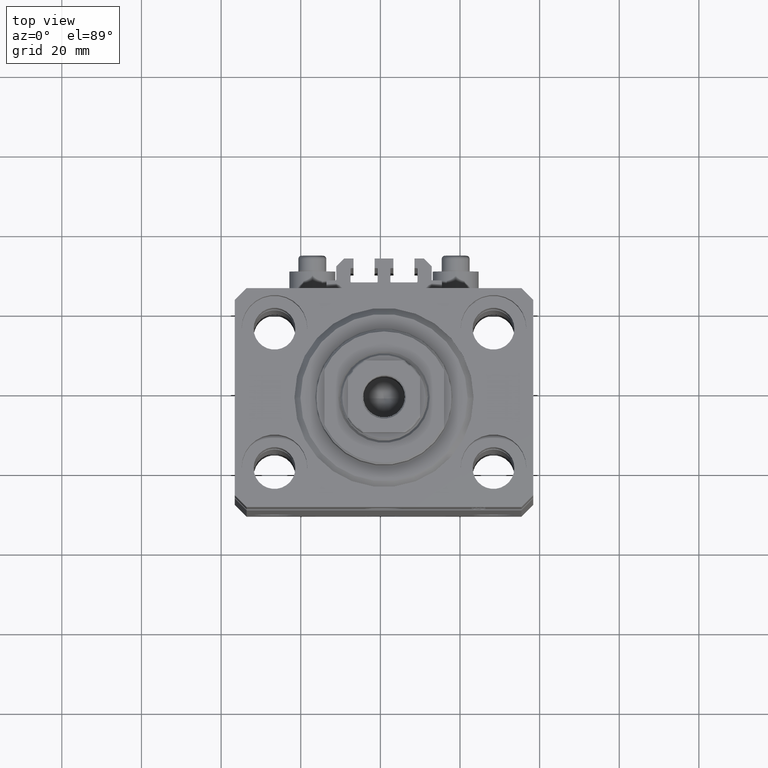
[diagram: clean part render]
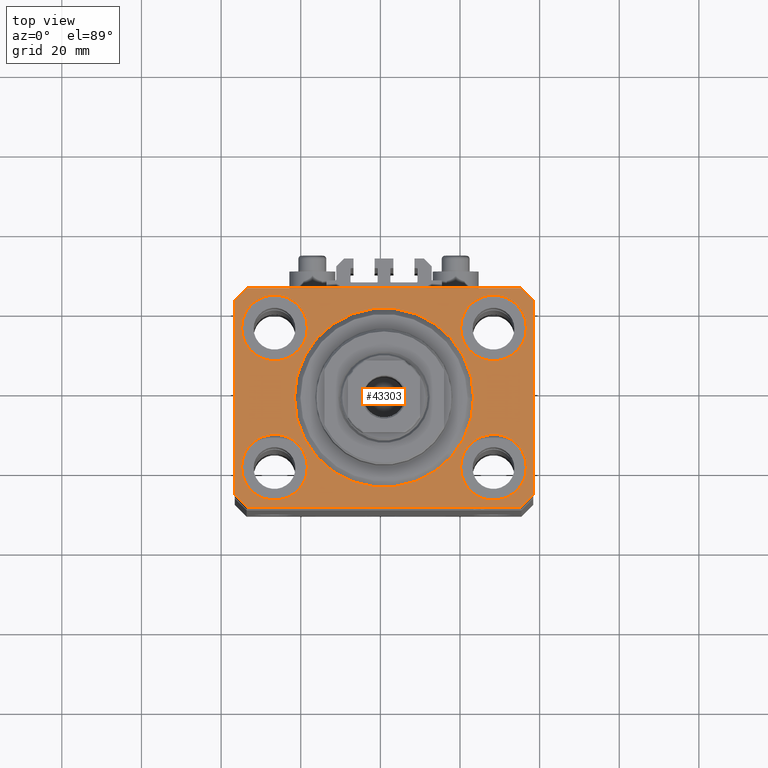
[diagram: same view with one face highlighted and labeled with its STEP entity id]
A machine part, top view. The second image highlights one B-rep face of the part: STEP entity #43303.
In plain terms, the highlighted planar face has unit normal (0, 0, 1).
Its self-contained STEP definition (entity closure, byte-faithful):
#50 = CARTESIAN_POINT ( 'NONE',  ( -35.75000000000000711, -17.50000000000000000, 0.000000000000000000 ) ) ;
#249 = CIRCLE ( 'NONE', #43824, 8.249999999999992895 ) ;
#252 = EDGE_CURVE ( 'NONE', #40753, #22556, #27570, .T. ) ;
#1349 = VECTOR ( 'NONE', #29071, 1000.000000000000000 ) ;
#1480 = EDGE_CURVE ( 'NONE', #25576, #8618, #30714, .T. ) ;
#1924 = ORIENTED_EDGE ( 'NONE', *, *, #252, .F. ) ;
#1992 = LINE ( 'NONE', #12987, #12232 ) ;
#2139 = EDGE_LOOP ( 'NONE', ( #2647, #6850 ) ) ;
#2145 = ORIENTED_EDGE ( 'NONE', *, *, #30715, .T. ) ;
#2647 = ORIENTED_EDGE ( 'NONE', *, *, #38911, .F. ) ;
#2744 = CIRCLE ( 'NONE', #13433, 22.50000000000000355 ) ;
#2858 = VERTEX_POINT ( 'NONE', #42914 ) ;
#4177 = AXIS2_PLACEMENT_3D ( 'NONE', #37894, #45326, #22817 ) ;
#4581 = ORIENTED_EDGE ( 'NONE', *, *, #5523, .F. ) ;
#4934 = CIRCLE ( 'NONE', #4177, 8.250000000000000000 ) ;
#5523 = EDGE_CURVE ( 'NONE', #17678, #14948, #23157, .T. ) ;
#5647 = VERTEX_POINT ( 'NONE', #44889 ) ;
#6177 = DIRECTION ( 'NONE',  ( 1.000000000000000000, 0.000000000000000000, 0.000000000000000000 ) ) ;
#6222 = EDGE_CURVE ( 'NONE', #31524, #38017, #29939, .T. ) ;
#6850 = ORIENTED_EDGE ( 'NONE', *, *, #8334, .F. ) ;
#7384 = CARTESIAN_POINT ( 'NONE',  ( 0.000000000000000000, 0.000000000000000000, 0.000000000000000000 ) ) ;
#7558 = EDGE_LOOP ( 'NONE', ( #30304, #34736 ) ) ;
#7770 = AXIS2_PLACEMENT_3D ( 'NONE', #19389, #34023, #26346 ) ;
#7860 = FACE_BOUND ( 'NONE', #2139, .T. ) ;
#8334 = EDGE_CURVE ( 'NONE', #32291, #33200, #4934, .T. ) ;
#8445 = DIRECTION ( 'NONE',  ( -0.7071067811865471286, -0.7071067811865479058, 0.000000000000000000 ) ) ;
#8618 = VERTEX_POINT ( 'NONE', #14157 ) ;
#8907 = CARTESIAN_POINT ( 'NONE',  ( -34.49999999999999289, 27.50000000000000000, 0.000000000000000000 ) ) ;
#9803 = DIRECTION ( 'NONE',  ( 1.076236605503979380E-14, 1.000000000000000000, 0.000000000000000000 ) ) ;
#10206 = EDGE_CURVE ( 'NONE', #44038, #33108, #40235, .T. ) ;
#10227 = ORIENTED_EDGE ( 'NONE', *, *, #38663, .T. ) ;
#10389 = AXIS2_PLACEMENT_3D ( 'NONE', #36039, #35332, #20937 ) ;
#11019 = DIRECTION ( 'NONE',  ( 0.7071067811865474617, 0.7071067811865474617, 0.000000000000000000 ) ) ;
#11445 = FACE_BOUND ( 'NONE', #22728, .T. ) ;
#12232 = VECTOR ( 'NONE', #38603, 1000.000000000000000 ) ;
#12533 = CARTESIAN_POINT ( 'NONE',  ( -37.49999999999999289, -24.50000000000000000, 0.000000000000000000 ) ) ;
#12987 = CARTESIAN_POINT ( 'NONE',  ( -34.49999999999998579, -27.49999999999999645, 0.000000000000000000 ) ) ;
#13100 = LINE ( 'NONE', #35845, #18766 ) ;
#13249 = EDGE_CURVE ( 'NONE', #2858, #42911, #13100, .T. ) ;
#13433 = AXIS2_PLACEMENT_3D ( 'NONE', #41054, #26665, #37221 ) ;
#13876 = CARTESIAN_POINT ( 'NONE',  ( 37.49999999999999289, -24.50000000000000000, 0.000000000000000000 ) ) ;
#14157 = CARTESIAN_POINT ( 'NONE',  ( 35.74999999999999289, 17.50000000000001066, 0.000000000000000000 ) ) ;
#14245 = CARTESIAN_POINT ( 'NONE',  ( -19.25000000000000355, 17.50000000000000000, 0.000000000000000000 ) ) ;
#14384 = CARTESIAN_POINT ( 'NONE',  ( 34.50000000000056843, 27.50000000000000000, 0.000000000000000000 ) ) ;
#14576 = EDGE_CURVE ( 'NONE', #14948, #17678, #31063, .T. ) ;
#14610 = EDGE_CURVE ( 'NONE', #46170, #29779, #34026, .T. ) ;
#14948 = VERTEX_POINT ( 'NONE', #17996 ) ;
#15414 = CARTESIAN_POINT ( 'NONE',  ( -37.49999999999999289, 24.50000000000000000, 0.000000000000000000 ) ) ;
#15787 = DIRECTION ( 'NONE',  ( 0.7071067811865483499, -0.7071067811865466846, 0.000000000000000000 ) ) ;
#16421 = CARTESIAN_POINT ( 'NONE',  ( 37.49999999999999289, -24.50000000000000000, 0.000000000000000000 ) ) ;
#16792 = EDGE_CURVE ( 'NONE', #22556, #40753, #2744, .T. ) ;
#16885 = CARTESIAN_POINT ( 'NONE',  ( -35.75000000000000711, 17.50000000000000000, 0.000000000000000000 ) ) ;
#17172 = CARTESIAN_POINT ( 'NONE',  ( -27.50000000000000355, 17.50000000000000000, 0.000000000000000000 ) ) ;
#17315 = ORIENTED_EDGE ( 'NONE', *, *, #14576, .F. ) ;
#17678 = VERTEX_POINT ( 'NONE', #42701 ) ;
#17996 = CARTESIAN_POINT ( 'NONE',  ( 35.75000000000000711, -17.50000000000000000, 0.000000000000000000 ) ) ;
#18050 = LINE ( 'NONE', #15414, #1349 ) ;
#18139 = FACE_OUTER_BOUND ( 'NONE', #35176, .T. ) ;
#18218 = ORIENTED_EDGE ( 'NONE', *, *, #13249, .T. ) ;
#18766 = VECTOR ( 'NONE', #25045, 1000.000000000000114 ) ;
#18785 = CARTESIAN_POINT ( 'NONE',  ( 27.50000000000000355, -17.50000000000000000, 0.000000000000000000 ) ) ;
#19389 = CARTESIAN_POINT ( 'NONE',  ( 27.49999999999999645, 17.50000000000001066, 0.000000000000000000 ) ) ;
#20431 = DIRECTION ( 'NONE',  ( 0.000000000000000000, 0.000000000000000000, 1.000000000000000000 ) ) ;
#20670 = ORIENTED_EDGE ( 'NONE', *, *, #1480, .F. ) ;
#20937 = DIRECTION ( 'NONE',  ( 1.000000000000000000, 0.000000000000000000, 0.000000000000000000 ) ) ;
#21788 = EDGE_CURVE ( 'NONE', #34909, #31524, #18050, .T. ) ;
#21870 = CARTESIAN_POINT ( 'NONE',  ( -34.49999999999998579, -27.49999999999999645, 0.000000000000000000 ) ) ;
#22556 = VERTEX_POINT ( 'NONE', #35577 ) ;
#22728 = EDGE_LOOP ( 'NONE', ( #1924, #34204 ) ) ;
#22817 = DIRECTION ( 'NONE',  ( 1.000000000000000000, 0.000000000000000000, 0.000000000000000000 ) ) ;
#23157 = CIRCLE ( 'NONE', #45363, 8.250000000000000000 ) ;
#23736 = AXIS2_PLACEMENT_3D ( 'NONE', #28566, #20431, #42958 ) ;
#24256 = CARTESIAN_POINT ( 'NONE',  ( 34.49999999999999289, -27.49999999999999645, 0.000000000000000000 ) ) ;
#24560 = AXIS2_PLACEMENT_3D ( 'NONE', #35471, #46006, #46718 ) ;
#25045 = DIRECTION ( 'NONE',  ( -0.7071067811865356934, 0.7071067811865594521, 0.000000000000000000 ) ) ;
#25107 = LINE ( 'NONE', #13876, #30840 ) ;
#25560 = FACE_BOUND ( 'NONE', #43959, .T. ) ;
#25576 = VERTEX_POINT ( 'NONE', #28184 ) ;
#25730 = DIRECTION ( 'NONE',  ( 1.000000000000000000, 0.000000000000000000, 0.000000000000000000 ) ) ;
#25990 = CARTESIAN_POINT ( 'NONE',  ( 27.49999999999999645, 17.50000000000001066, 0.000000000000000000 ) ) ;
#26039 = DIRECTION ( 'NONE',  ( 0.000000000000000000, 0.000000000000000000, 1.000000000000000000 ) ) ;
#26346 = DIRECTION ( 'NONE',  ( 1.000000000000000000, 0.000000000000000000, 0.000000000000000000 ) ) ;
#26349 = AXIS2_PLACEMENT_3D ( 'NONE', #27654, #42271, #33150 ) ;
#26665 = DIRECTION ( 'NONE',  ( 0.000000000000000000, 0.000000000000000000, 1.000000000000000000 ) ) ;
#27570 = CIRCLE ( 'NONE', #23736, 22.50000000000000355 ) ;
#27654 = CARTESIAN_POINT ( 'NONE',  ( -27.50000000000000355, -17.50000000000000000, 0.000000000000000000 ) ) ;
#27810 = ORIENTED_EDGE ( 'NONE', *, *, #34667, .T. ) ;
#28184 = CARTESIAN_POINT ( 'NONE',  ( 19.25000000000000000, 17.50000000000001066, 0.000000000000000000 ) ) ;
#28566 = CARTESIAN_POINT ( 'NONE',  ( 0.000000000000000000, 0.000000000000000000, 0.000000000000000000 ) ) ;
#29071 = DIRECTION ( 'NONE',  ( 0.000000000000000000, -1.000000000000000000, 0.000000000000000000 ) ) ;
#29779 = VERTEX_POINT ( 'NONE', #38016 ) ;
#29791 = CARTESIAN_POINT ( 'NONE',  ( 34.50000000000056843, 27.50000000000000000, 0.000000000000000000 ) ) ;
#29939 = LINE ( 'NONE', #41884, #38471 ) ;
#30304 = ORIENTED_EDGE ( 'NONE', *, *, #33898, .F. ) ;
#30714 = CIRCLE ( 'NONE', #7770, 8.249999999999992895 ) ;
#30715 = EDGE_CURVE ( 'NONE', #38017, #44038, #1992, .T. ) ;
#30840 = VECTOR ( 'NONE', #9803, 1000.000000000000000 ) ;
#31063 = CIRCLE ( 'NONE', #10389, 8.250000000000000000 ) ;
#31230 = AXIS2_PLACEMENT_3D ( 'NONE', #7384, #26039, #47132 ) ;
#31524 = VERTEX_POINT ( 'NONE', #12533 ) ;
#32044 = ORIENTED_EDGE ( 'NONE', *, *, #37759, .F. ) ;
#32291 = VERTEX_POINT ( 'NONE', #16885 ) ;
#32534 = FACE_BOUND ( 'NONE', #40054, .T. ) ;
#32833 = DIRECTION ( 'NONE',  ( -1.000000000000000000, 0.000000000000000000, 0.000000000000000000 ) ) ;
#33004 = PLANE ( 'NONE',  #31230 ) ;
#33108 = VERTEX_POINT ( 'NONE', #16421 ) ;
#33150 = DIRECTION ( 'NONE',  ( 1.000000000000000000, 0.000000000000000000, 0.000000000000000000 ) ) ;
#33200 = VERTEX_POINT ( 'NONE', #14245 ) ;
#33454 = ORIENTED_EDGE ( 'NONE', *, *, #6222, .T. ) ;
#33898 = EDGE_CURVE ( 'NONE', #29779, #46170, #42179, .T. ) ;
#34023 = DIRECTION ( 'NONE',  ( 0.000000000000000000, 0.000000000000000000, 1.000000000000000000 ) ) ;
#34026 = CIRCLE ( 'NONE', #26349, 8.250000000000000000 ) ;
#34204 = ORIENTED_EDGE ( 'NONE', *, *, #16792, .F. ) ;
#34493 = ORIENTED_EDGE ( 'NONE', *, *, #21788, .T. ) ;
#34667 = EDGE_CURVE ( 'NONE', #5647, #34909, #45072, .T. ) ;
#34736 = ORIENTED_EDGE ( 'NONE', *, *, #14610, .F. ) ;
#34909 = VERTEX_POINT ( 'NONE', #40955 ) ;
#35176 = EDGE_LOOP ( 'NONE', ( #42819, #27810, #34493, #33454, #2145, #39974, #10227, #18218 ) ) ;
#35332 = DIRECTION ( 'NONE',  ( 0.000000000000000000, 0.000000000000000000, 1.000000000000000000 ) ) ;
#35448 = AXIS2_PLACEMENT_3D ( 'NONE', #17172, #38961, #6177 ) ;
#35471 = CARTESIAN_POINT ( 'NONE',  ( -27.50000000000000355, -17.50000000000000000, 0.000000000000000000 ) ) ;
#35577 = CARTESIAN_POINT ( 'NONE',  ( -22.50000000000000355, 2.755455298081545172E-15, 0.000000000000000000 ) ) ;
#35845 = CARTESIAN_POINT ( 'NONE',  ( 37.50000000000051870, 24.49999999999995381, 0.000000000000000000 ) ) ;
#36039 = CARTESIAN_POINT ( 'NONE',  ( 27.50000000000000355, -17.50000000000000000, 0.000000000000000000 ) ) ;
#36100 = VECTOR ( 'NONE', #8445, 1000.000000000000000 ) ;
#36288 = DIRECTION ( 'NONE',  ( 0.000000000000000000, 0.000000000000000000, 1.000000000000000000 ) ) ;
#36358 = FACE_BOUND ( 'NONE', #7558, .T. ) ;
#36888 = CARTESIAN_POINT ( 'NONE',  ( 34.49999999999999289, -27.49999999999999645, 0.000000000000000000 ) ) ;
#37118 = VECTOR ( 'NONE', #11019, 1000.000000000000114 ) ;
#37127 = LINE ( 'NONE', #14384, #39639 ) ;
#37221 = DIRECTION ( 'NONE',  ( 1.000000000000000000, 0.000000000000000000, 0.000000000000000000 ) ) ;
#37759 = EDGE_CURVE ( 'NONE', #8618, #25576, #249, .T. ) ;
#37894 = CARTESIAN_POINT ( 'NONE',  ( -27.50000000000000355, 17.50000000000000000, 0.000000000000000000 ) ) ;
#38016 = CARTESIAN_POINT ( 'NONE',  ( -19.25000000000000355, -17.50000000000000000, 0.000000000000000000 ) ) ;
#38017 = VERTEX_POINT ( 'NONE', #21870 ) ;
#38471 = VECTOR ( 'NONE', #15787, 1000.000000000000000 ) ;
#38603 = DIRECTION ( 'NONE',  ( 1.000000000000000000, 0.000000000000000000, 0.000000000000000000 ) ) ;
#38663 = EDGE_CURVE ( 'NONE', #33108, #2858, #25107, .T. ) ;
#38911 = EDGE_CURVE ( 'NONE', #33200, #32291, #40789, .T. ) ;
#38961 = DIRECTION ( 'NONE',  ( 0.000000000000000000, 0.000000000000000000, 1.000000000000000000 ) ) ;
#39639 = VECTOR ( 'NONE', #32833, 1000.000000000000000 ) ;
#39974 = ORIENTED_EDGE ( 'NONE', *, *, #10206, .T. ) ;
#40054 = EDGE_LOOP ( 'NONE', ( #17315, #4581 ) ) ;
#40235 = LINE ( 'NONE', #36888, #37118 ) ;
#40616 = DIRECTION ( 'NONE',  ( 0.000000000000000000, 0.000000000000000000, 1.000000000000000000 ) ) ;
#40753 = VERTEX_POINT ( 'NONE', #43373 ) ;
#40789 = CIRCLE ( 'NONE', #35448, 8.250000000000000000 ) ;
#40924 = EDGE_CURVE ( 'NONE', #42911, #5647, #37127, .T. ) ;
#40955 = CARTESIAN_POINT ( 'NONE',  ( -37.49999999999999289, 24.50000000000000000, 0.000000000000000000 ) ) ;
#41054 = CARTESIAN_POINT ( 'NONE',  ( 0.000000000000000000, 0.000000000000000000, 0.000000000000000000 ) ) ;
#41884 = CARTESIAN_POINT ( 'NONE',  ( -37.49999999999999289, -24.50000000000000000, 0.000000000000000000 ) ) ;
#42179 = CIRCLE ( 'NONE', #24560, 8.250000000000000000 ) ;
#42271 = DIRECTION ( 'NONE',  ( 0.000000000000000000, 0.000000000000000000, 1.000000000000000000 ) ) ;
#42701 = CARTESIAN_POINT ( 'NONE',  ( 19.25000000000000000, -17.50000000000000000, 0.000000000000000000 ) ) ;
#42819 = ORIENTED_EDGE ( 'NONE', *, *, #40924, .T. ) ;
#42911 = VERTEX_POINT ( 'NONE', #29791 ) ;
#42914 = CARTESIAN_POINT ( 'NONE',  ( 37.50000000000051870, 24.49999999999995381, 0.000000000000000000 ) ) ;
#42958 = DIRECTION ( 'NONE',  ( 1.000000000000000000, 0.000000000000000000, 0.000000000000000000 ) ) ;
#43303 = ADVANCED_FACE ( 'NONE', ( #36358, #32534, #25560, #7860, #11445, #18139 ), #33004, .T. ) ;
#43373 = CARTESIAN_POINT ( 'NONE',  ( 22.50000000000000355, 0.000000000000000000, 0.000000000000000000 ) ) ;
#43824 = AXIS2_PLACEMENT_3D ( 'NONE', #25990, #40616, #44452 ) ;
#43959 = EDGE_LOOP ( 'NONE', ( #32044, #20670 ) ) ;
#44038 = VERTEX_POINT ( 'NONE', #24256 ) ;
#44452 = DIRECTION ( 'NONE',  ( 1.000000000000000000, 0.000000000000000000, 0.000000000000000000 ) ) ;
#44889 = CARTESIAN_POINT ( 'NONE',  ( -34.49999999999999289, 27.50000000000000000, 0.000000000000000000 ) ) ;
#45072 = LINE ( 'NONE', #8907, #36100 ) ;
#45326 = DIRECTION ( 'NONE',  ( 0.000000000000000000, 0.000000000000000000, 1.000000000000000000 ) ) ;
#45363 = AXIS2_PLACEMENT_3D ( 'NONE', #18785, #36288, #25730 ) ;
#46006 = DIRECTION ( 'NONE',  ( 0.000000000000000000, 0.000000000000000000, 1.000000000000000000 ) ) ;
#46170 = VERTEX_POINT ( 'NONE', #50 ) ;
#46718 = DIRECTION ( 'NONE',  ( 1.000000000000000000, 0.000000000000000000, 0.000000000000000000 ) ) ;
#47132 = DIRECTION ( 'NONE',  ( 1.000000000000000000, 0.000000000000000000, -0.000000000000000000 ) ) ;